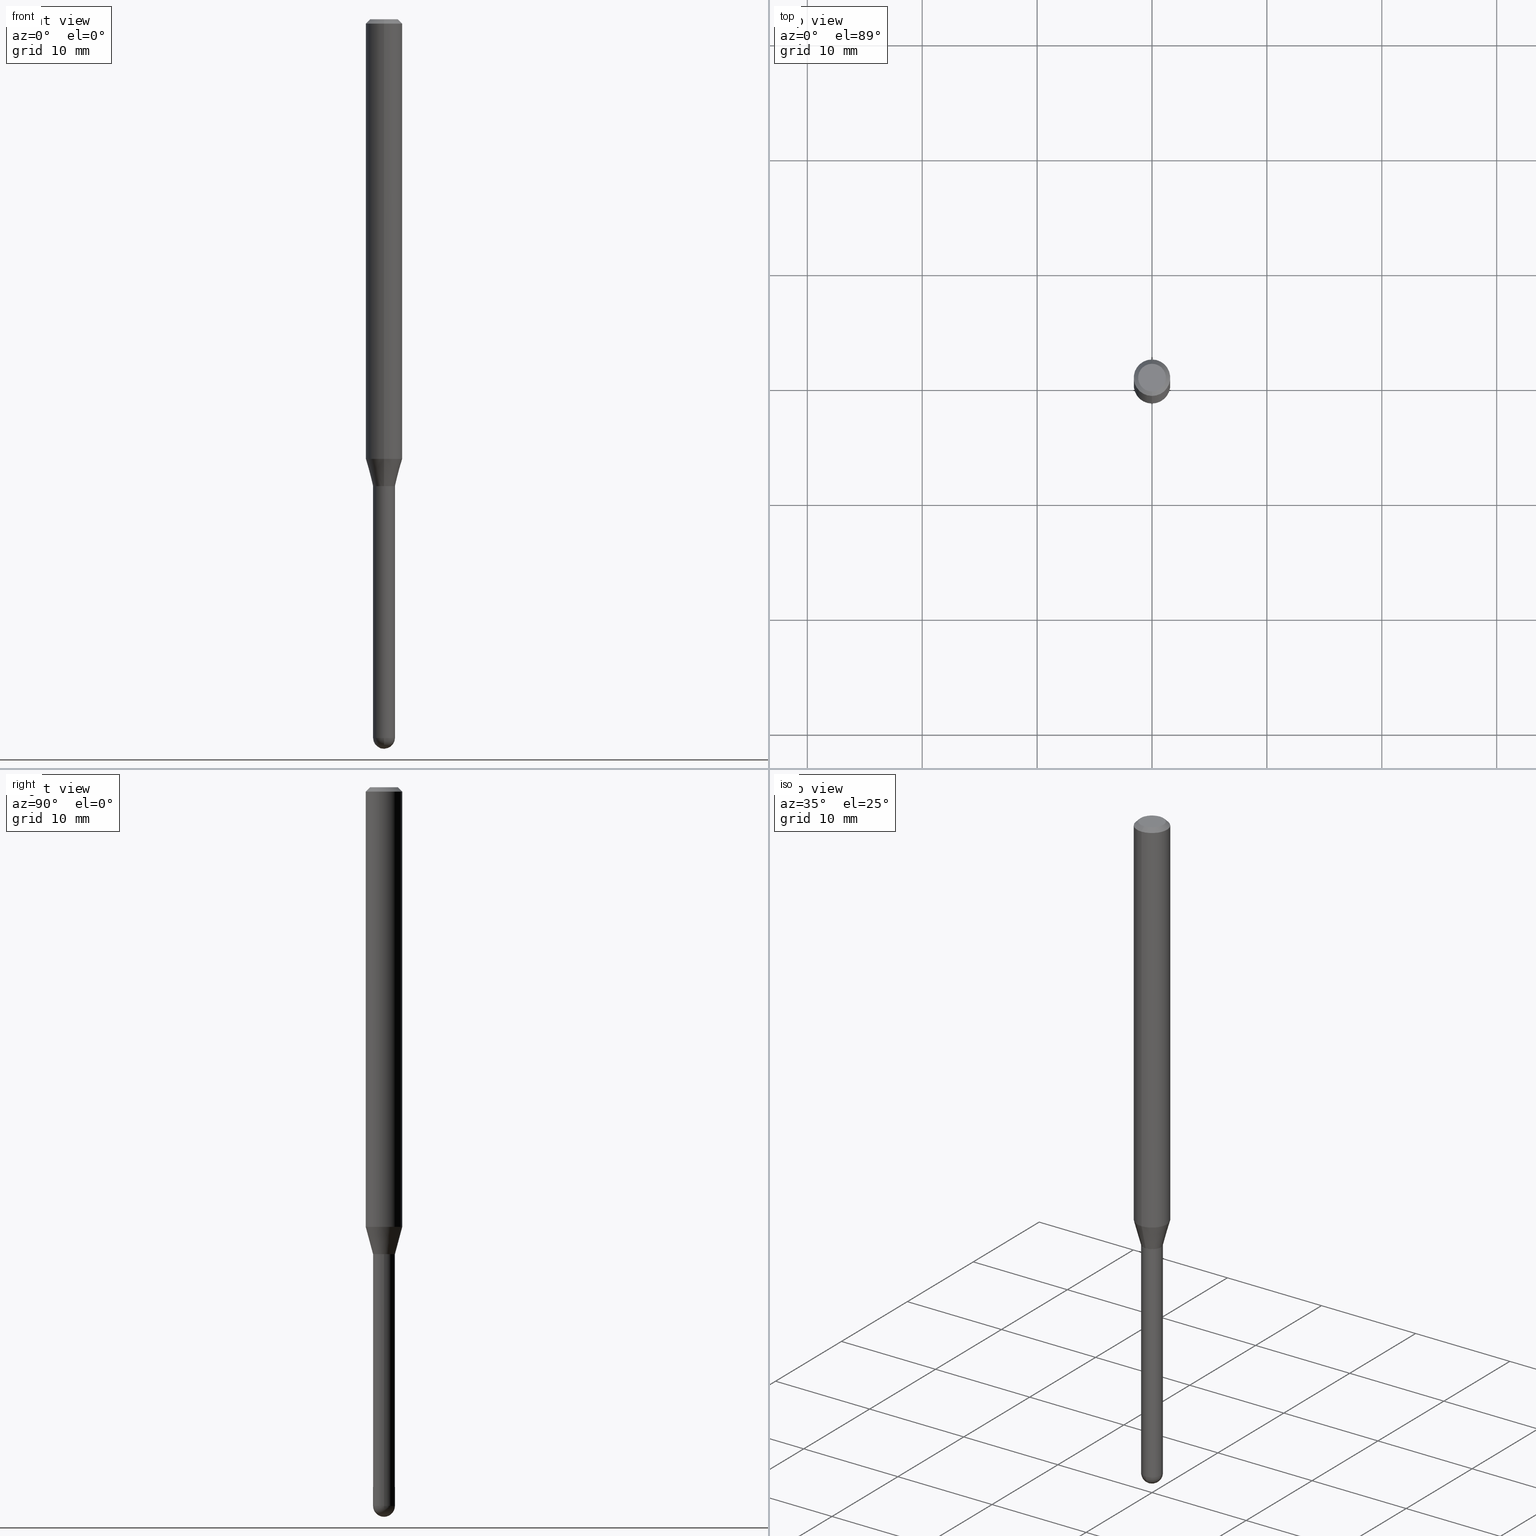
[diagram: canonical four-view strip — front | top / right | iso, engineering-drawing reading convention]
A machine part, canonical four-view strip (front | top / right | iso — engineering-drawing reading convention). The complete STEP part file that produces these views, byte-faithful:
ISO-10303-21;
HEADER;
FILE_DESCRIPTION (( 'STEP AP203' ),
    '1' );
FILE_NAME ('04526.STEP',
    '2024-03-08T20:29:47',
    ( '' ),
    ( '' ),
    'SwSTEP 2.0',
    'SolidWorks 2023',
    '' );
FILE_SCHEMA (( 'CONFIG_CONTROL_DESIGN' ));
ENDSEC;

DATA;
#1 = EDGE_CURVE ( 'NONE', #416, #306, #351, .T. ) ;
#2 = CARTESIAN_POINT ( 'NONE',  ( 6.021966935230899318E-29, -8.597772796901246653E-15, -2.462500000000000355 ) ) ;
#3 = ORIENTED_EDGE ( 'NONE', *, *, #361, .T. ) ;
#4 = CALENDAR_DATE ( 2024, 8, 3 ) ;
#5 = CARTESIAN_POINT ( 'NONE',  ( -4.287811248607203282E-16, -0.06250000000000005551, -0.01499999999999984852 ) ) ;
#6 = CIRCLE ( 'NONE', #505, 0.03749999999999999861 ) ;
#7 = DIRECTION ( 'NONE',  ( 1.000000000000000000, -6.982962677686242256E-15, 0.000000000000000000 ) ) ;
#8 = CC_DESIGN_PERSON_AND_ORGANIZATION_ASSIGNMENT ( #42, #385, ( #435 ) ) ;
#9 = VERTEX_POINT ( 'NONE', #107 ) ;
#10 = FACE_OUTER_BOUND ( 'NONE', #237, .T. ) ;
#11 = CYLINDRICAL_SURFACE ( 'NONE', #386, 0.03750000000000005412 ) ;
#12 = PERSON_AND_ORGANIZATION ( #284, #143 ) ;
#13 = FACE_OUTER_BOUND ( 'NONE', #49, .T. ) ;
#14 = EDGE_LOOP ( 'NONE', ( #371, #317 ) ) ;
#15 = DIRECTION ( 'NONE',  ( -6.982962677686265133E-15, -1.000000000000000000, 0.000000000000000000 ) ) ;
#16 = DIRECTION ( 'NONE',  ( -2.445449366316868324E-29, 3.491509177840954321E-15, 1.000000000000000000 ) ) ;
#17 = AXIS2_PLACEMENT_3D ( 'NONE', #387, #36, #395 ) ;
#18 = FACE_OUTER_BOUND ( 'NONE', #131, .T. ) ;
#19 = AXIS2_PLACEMENT_3D ( 'NONE', #167, #482, #15 ) ;
#20 = DIRECTION ( 'NONE',  ( -2.445468806185136597E-29, 3.491481338843145583E-15, 1.000000000000000000 ) ) ;
#21 = EDGE_CURVE ( 'NONE', #97, #266, #70, .T. ) ;
#22 = DIRECTION ( 'NONE',  ( -6.982962677686265922E-15, -1.000000000000000000, 0.000000000000000000 ) ) ;
#23 = APPLICATION_CONTEXT ( 'configuration controlled 3d designs of mechanical parts and assemblies' ) ;
#24 = DIRECTION ( 'NONE',  ( -2.445449366316868324E-29, 3.491509177840954321E-15, 1.000000000000000000 ) ) ;
#25 = ORIENTED_EDGE ( 'NONE', *, *, #298, .F. ) ;
#26 = EDGE_CURVE ( 'NONE', #428, #360, #108, .T. ) ;
#27 = DIRECTION ( 'NONE',  ( -1.000000000000000000, 6.982962677686265922E-15, -4.883557194083112901E-29 ) ) ;
#28 = DIRECTION ( 'NONE',  ( 1.000000000000000000, -6.982962677686266711E-15, 4.876176775795935793E-29 ) ) ;
#29 = CARTESIAN_POINT ( 'NONE',  ( 3.684555454046204946E-29, -5.260652443375649758E-15, -1.506698729810781012 ) ) ;
#30 = ORIENTED_EDGE ( 'NONE', *, *, #129, .F. ) ;
#31 = ORIENTED_EDGE ( 'NONE', *, *, #378, .T. ) ;
#32 = AXIS2_PLACEMENT_3D ( 'NONE', #259, #222, #294 ) ;
#33 = CIRCLE ( 'NONE', #181, 0.03749999999999992228 ) ;
#34 = APPROVAL_DATE_TIME ( #204, #425 ) ;
#35 = EDGE_CURVE ( 'NONE', #207, #9, #142, .T. ) ;
#36 = DIRECTION ( 'NONE',  ( 2.445449366316868324E-29, -3.491509177840953927E-15, -1.000000000000000000 ) ) ;
#37 = DIRECTION ( 'NONE',  ( -2.445468806185136597E-29, 3.491481338843145583E-15, 1.000000000000000000 ) ) ;
#38 = VERTEX_POINT ( 'NONE', #145 ) ;
#39 = PERSON_AND_ORGANIZATION_ROLE ( 'creator' ) ;
#40 = FACE_OUTER_BOUND ( 'NONE', #14, .T. ) ;
#41 = CARTESIAN_POINT ( 'NONE',  ( 6.018760061646477031E-29, -8.602365222398048274E-15, -2.462500000000000355 ) ) ;
#42 = PERSON_AND_ORGANIZATION ( #284, #143 ) ;
#43 = DIRECTION ( 'NONE',  ( -6.982962677686265922E-15, -1.000000000000000000, 3.491509177840953927E-15 ) ) ;
#44 = ADVANCED_FACE ( 'NONE', ( #292 ), #336, .F. ) ;
#45 = AXIS2_PLACEMENT_3D ( 'NONE', #226, #192, #341 ) ;
#46 = DATE_AND_TIME ( #483, #381 ) ;
#47 = CONICAL_SURFACE ( 'NONE', #326, 0.03749999999999992228, 0.2617993877991579010 ) ;
#48 = FACE_OUTER_BOUND ( 'NONE', #58, .T. ) ;
#49 = EDGE_LOOP ( 'NONE', ( #66, #234, #272, #255 ) ) ;
#50 = APPROVAL_ROLE ( '' ) ;
#51 = DIRECTION ( 'NONE',  ( -2.445468806185136597E-29, 3.491481338843145583E-15, 1.000000000000000000 ) ) ;
#52 =( NAMED_UNIT ( * ) SI_UNIT ( $, .STERADIAN. ) SOLID_ANGLE_UNIT ( ) );
#53 = DIRECTION ( 'NONE',  ( -2.445449366316868324E-29, 3.491509177840954321E-15, 1.000000000000000000 ) ) ;
#54 = ADVANCED_FACE ( 'NONE', ( #511 ), #443, .F. ) ;
#55 = AXIS2_PLACEMENT_3D ( 'NONE', #159, #313, #344 ) ;
#56 = LINE ( 'NONE', #214, #370 ) ;
#57 = ADVANCED_BREP_SHAPE_REPRESENTATION ( '04526', ( #512, #331, #301 ), #281 ) ;
#58 = EDGE_LOOP ( 'NONE', ( #158, #427, #290, #118 ) ) ;
#59 = CYLINDRICAL_SURFACE ( 'NONE', #134, 0.03749999999999999861 ) ;
#60 = DIRECTION ( 'NONE',  ( 1.000000000000000000, -6.982962677686242256E-15, 0.000000000000000000 ) ) ;
#61 = EDGE_CURVE ( 'NONE', #402, #416, #78, .T. ) ;
#62 = ORIENTED_EDGE ( 'NONE', *, *, #171, .F. ) ;
#63 = CYLINDRICAL_SURFACE ( 'NONE', #339, 0.03749999999999999861 ) ;
#64 = CIRCLE ( 'NONE', #249, 0.03749999999999999861 ) ;
#65 = ORIENTED_EDGE ( 'NONE', *, *, #335, .T. ) ;
#66 = ORIENTED_EDGE ( 'NONE', *, *, #335, .F. ) ;
#67 = DIMENSIONAL_EXPONENTS ( 1.000000000000000000, 0.000000000000000000, 0.000000000000000000, 0.000000000000000000, 0.000000000000000000, 0.000000000000000000, 0.000000000000000000 ) ;
#68 = EDGE_CURVE ( 'NONE', #207, #80, #401, .T. ) ;
#69 = DIRECTION ( 'NONE',  ( -4.937700262164674260E-15, -0.7071067811865632269, 0.7071067811865319186 ) ) ;
#70 = CIRCLE ( 'NONE', #191, 0.03749999999999999861 ) ;
#71 = AXIS2_PLACEMENT_3D ( 'NONE', #323, #364, #321 ) ;
#72 = CARTESIAN_POINT ( 'NONE',  ( -2.583696190743526501E-16, -0.03700000000000558398, -1.600000000000000311 ) ) ;
#73 = DIRECTION ( 'NONE',  ( -6.982962677686265922E-15, -1.000000000000000000, 4.370956789862821150E-15 ) ) ;
#74 = ADVANCED_FACE ( 'NONE', ( #13 ), #11, .F. ) ;
#75 = ORIENTED_EDGE ( 'NONE', *, *, #26, .T. ) ;
#76 = PERSON_AND_ORGANIZATION ( #284, #143 ) ;
#77 = ORIENTED_EDGE ( 'NONE', *, *, #277, .T. ) ;
#78 = CIRCLE ( 'NONE', #423, 0.03749999999999990841 ) ;
#79 = CIRCLE ( 'NONE', #112, 0.03750000000000019290 ) ;
#80 = VERTEX_POINT ( 'NONE', #441 ) ;
#81 = CARTESIAN_POINT ( 'NONE',  ( 3.912718986106990440E-29, -5.586414684545527703E-15, -1.600000000000000311 ) ) ;
#82 = DIRECTION ( 'NONE',  ( 1.000000000000000000, -6.982962677686242256E-15, 0.000000000000000000 ) ) ;
#83 = VERTEX_POINT ( 'NONE', #89 ) ;
#84 = APPROVAL_DATE_TIME ( #88, #152 ) ;
#85 = EDGE_CURVE ( 'NONE', #333, #80, #79, .T. ) ;
#86 = LINE ( 'NONE', #130, #242 ) ;
#87 = ORIENTED_EDGE ( 'NONE', *, *, #35, .F. ) ;
#88 = DATE_AND_TIME ( #200, #506 ) ;
#89 = CARTESIAN_POINT ( 'NONE',  ( -2.618611004131953121E-16, -0.03750000000000550809, -1.600000000000000089 ) ) ;
#90 = ORIENTED_EDGE ( 'NONE', *, *, #361, .F. ) ;
#91 = AXIS2_PLACEMENT_3D ( 'NONE', #41, #397, #240 ) ;
#92 = CARTESIAN_POINT ( 'NONE',  ( 6.112068578670630349E-29, -8.730999559856264176E-15, -2.500000000000000000 ) ) ;
#93 = DIRECTION ( 'NONE',  ( -4.851104656540964275E-15, -0.7071067811865500152, -0.7071067811865450192 ) ) ;
#94 = LINE ( 'NONE', #5, #269 ) ;
#95 = CC_DESIGN_DATE_AND_TIME_ASSIGNMENT ( #477, #239, ( #99 ) ) ;
#96 = EDGE_LOOP ( 'NONE', ( #263, #228, #420, #90, #117 ) ) ;
#97 = VERTEX_POINT ( 'NONE', #353 ) ;
#98 = AXIS2_PLACEMENT_3D ( 'NONE', #322, #409, #22 ) ;
#99 = SECURITY_CLASSIFICATION ( '', '', #208 ) ;
#100 = DIRECTION ( 'NONE',  ( -6.982962677686265922E-15, -1.000000000000000000, 4.370956789862821150E-15 ) ) ;
#101 = EDGE_LOOP ( 'NONE', ( #62, #188, #462, #389 ) ) ;
#102 = EDGE_CURVE ( 'NONE', #504, #360, #356, .T. ) ;
#103 = CARTESIAN_POINT ( 'NONE',  ( 0.03749999999999999861, -5.848231242562268092E-15, -1.600000000000000089 ) ) ;
#104 = ORIENTED_EDGE ( 'NONE', *, *, #1, .F. ) ;
#105 = FACE_OUTER_BOUND ( 'NONE', #101, .T. ) ;
#106 = DIRECTION ( 'NONE',  ( -6.982962677686265922E-15, -1.000000000000000000, 3.491509177840954321E-15 ) ) ;
#107 = CARTESIAN_POINT ( 'NONE',  ( -2.583696190743526501E-16, -0.03700000000000558398, -1.600000000000000311 ) ) ;
#108 = CIRCLE ( 'NONE', #248, 0.06250000000000000000 ) ;
#109 = CIRCLE ( 'NONE', #280, 0.06250000000000000000 ) ;
#110 = ORIENTED_EDGE ( 'NONE', *, *, #102, .F. ) ;
#111 = PRODUCT_RELATED_PRODUCT_CATEGORY ( 'detail', '', ( #435 ) ) ;
#112 = AXIS2_PLACEMENT_3D ( 'NONE', #172, #195, #439 ) ;
#113 = CIRCLE ( 'NONE', #352, 0.04749999999999999362 ) ;
#114 = CC_DESIGN_PERSON_AND_ORGANIZATION_ASSIGNMENT ( #170, #349, ( #467 ) ) ;
#115 = DIRECTION ( 'NONE',  ( -2.445449366316868324E-29, 3.491509177840954321E-15, 1.000000000000000000 ) ) ;
#116 = ORIENTED_EDGE ( 'NONE', *, *, #21, .T. ) ;
#117 = ORIENTED_EDGE ( 'NONE', *, *, #298, .T. ) ;
#118 = ORIENTED_EDGE ( 'NONE', *, *, #413, .F. ) ;
#119 = DIRECTION ( 'NONE',  ( -1.000000000000000000, 6.982962677686265922E-15, -4.883557194083112901E-29 ) ) ;
#120 = COORDINATED_UNIVERSAL_TIME_OFFSET ( 5, 0, .BEHIND. ) ;
#121 = CARTESIAN_POINT ( 'NONE',  ( -4.364351673553550860E-16, -0.06250000000000530131, -1.506698729810780790 ) ) ;
#122 = CARTESIAN_POINT ( 'NONE',  ( 2.629008122312761537E-16, 0.03699999999999440542, -1.600000000000000311 ) ) ;
#123 = VECTOR ( 'NONE', #233, 39.37007874015748143 ) ;
#124 = CIRCLE ( 'NONE', #320, 0.03749999999999999861 ) ;
#125 = ORIENTED_EDGE ( 'NONE', *, *, #68, .F. ) ;
#126 = FACE_OUTER_BOUND ( 'NONE', #486, .T. ) ;
#127 = DIRECTION ( 'NONE',  ( -6.982962677686265133E-15, -1.000000000000000000, 0.000000000000000000 ) ) ;
#128 = PERSON_AND_ORGANIZATION_ROLE ( 'classification_officer' ) ;
#129 = EDGE_CURVE ( 'NONE', #83, #333, #86, .T. ) ;
#130 = CARTESIAN_POINT ( 'NONE',  ( -2.618611004132353468E-16, -0.03750000000000005412, 1.309315941690359843E-16 ) ) ;
#131 = EDGE_LOOP ( 'NONE', ( #509, #501, #466, #3, #471 ) ) ;
#132 = SHAPE_DEFINITION_REPRESENTATION ( #406, #57 ) ;
#133 = CARTESIAN_POINT ( 'NONE',  ( -0.03749999999999999861, -6.825617943615102854E-15, -2.462500000000000355 ) ) ;
#134 = AXIS2_PLACEMENT_3D ( 'NONE', #250, #20, #28 ) ;
#135 = LINE ( 'NONE', #138, #261 ) ;
#136 = CARTESIAN_POINT ( 'NONE',  ( -0.03749999999999999861, 2.664535259100375598E-16, -1.844600658845589808E-30 ) ) ;
#137 = CC_DESIGN_DATE_AND_TIME_ASSIGNMENT ( #311, #394, ( #241 ) ) ;
#138 = CARTESIAN_POINT ( 'NONE',  ( 4.440892098500625669E-16, 0.06250000000000000000, -2.182193236150596451E-16 ) ) ;
#139 = CARTESIAN_POINT ( 'NONE',  ( 0.000000000000000000, 0.000000000000000000, 0.000000000000000000 ) ) ;
#140 = FACE_OUTER_BOUND ( 'NONE', #262, .T. ) ;
#141 = ADVANCED_FACE ( 'NONE', ( #126 ), #488, .T. ) ;
#142 = CIRCLE ( 'NONE', #497, 0.03699999999999999817 ) ;
#143 = ORGANIZATION ( 'UNSPECIFIED', 'UNSPECIFIED', '' ) ;
#144 = DIRECTION ( 'NONE',  ( 1.000000000000000000, -6.982962677686266711E-15, 4.876176775795935793E-29 ) ) ;
#145 = CARTESIAN_POINT ( 'NONE',  ( 4.440892098500996926E-16, 0.06249999999999995837, -0.01500000000000028394 ) ) ;
#146 = DIRECTION ( 'NONE',  ( 1.000000000000000000, -6.982962677686268288E-15, 0.000000000000000000 ) ) ;
#147 = EDGE_LOOP ( 'NONE', ( #252, #65, #157, #30 ) ) ;
#148 = DIRECTION ( 'NONE',  ( -2.445449366316868324E-29, 3.491509177840954321E-15, 1.000000000000000000 ) ) ;
#149 = DIRECTION ( 'NONE',  ( -2.445449366316868324E-29, 3.491509177840954321E-15, 1.000000000000000000 ) ) ;
#150 = ADVANCED_FACE ( 'NONE', ( #236 ), #268, .T. ) ;
#151 = LINE ( 'NONE', #72, #510 ) ;
#152 = APPROVAL ( #194, 'UNSPECIFIED' ) ;
#153 = CARTESIAN_POINT ( 'NONE',  ( -4.364351673553916201E-16, -0.06250000000000000000, 2.182193236150596451E-16 ) ) ;
#154 = ORIENTED_EDGE ( 'NONE', *, *, #337, .T. ) ;
#155 = VECTOR ( 'NONE', #274, 39.37007874015748143 ) ;
#156 = EDGE_LOOP ( 'NONE', ( #75, #227, #407, #196 ) ) ;
#157 = ORIENTED_EDGE ( 'NONE', *, *, #293, .T. ) ;
#158 = ORIENTED_EDGE ( 'NONE', *, *, #368, .F. ) ;
#159 = CARTESIAN_POINT ( 'NONE',  ( 0.000000000000000000, 0.000000000000000000, 0.000000000000000000 ) ) ;
#160 = PERSON_AND_ORGANIZATION ( #284, #143 ) ;
#161 = DIRECTION ( 'NONE',  ( 6.982962677686265922E-15, 1.000000000000000000, -3.483106191921935554E-15 ) ) ;
#162 = ADVANCED_FACE ( 'NONE', ( #48 ), #431, .T. ) ;
#163 = AXIS2_PLACEMENT_3D ( 'NONE', #285, #24, #500 ) ;
#164 = CALENDAR_DATE ( 2024, 8, 3 ) ;
#165 = DIRECTION ( 'NONE',  ( 2.445449366316868324E-29, -3.491509177840954321E-15, -1.000000000000000000 ) ) ;
#166 = VERTEX_POINT ( 'NONE', #319 ) ;
#167 = CARTESIAN_POINT ( 'NONE',  ( 3.912718986106990440E-29, -5.586414684545527703E-15, -1.600000000000000311 ) ) ;
#168 = APPROVAL_ROLE ( '' ) ;
#169 = CARTESIAN_POINT ( 'NONE',  ( 3.668174049475319214E-31, -5.237263766761454039E-17, -0.01500000000000006710 ) ) ;
#170 = PERSON_AND_ORGANIZATION ( #284, #143 ) ;
#171 = EDGE_CURVE ( 'NONE', #402, #264, #465, .T. ) ;
#172 = CARTESIAN_POINT ( 'NONE',  ( 3.911496261423831796E-29, -5.584668929956606617E-15, -1.599500000000000144 ) ) ;
#173 = ORIENTED_EDGE ( 'NONE', *, *, #445, .T. ) ;
#174 = CIRCLE ( 'NONE', #163, 0.03749999999999992228 ) ;
#175 = CARTESIAN_POINT ( 'NONE',  ( 3.684555454046204946E-29, -5.260652443375649758E-15, -1.506698729810781012 ) ) ;
#176 = CYLINDRICAL_SURFACE ( 'NONE', #461, 0.03750000000000005412 ) ;
#177 = EDGE_CURVE ( 'NONE', #180, #97, #485, .T. ) ;
#178 = ORIENTED_EDGE ( 'NONE', *, *, #35, .T. ) ;
#179 = DIRECTION ( 'NONE',  ( -2.445449366316868324E-29, 3.491509177840954321E-15, 1.000000000000000000 ) ) ;
#180 = VERTEX_POINT ( 'NONE', #133 ) ;
#181 = AXIS2_PLACEMENT_3D ( 'NONE', #282, #408, #405 ) ;
#182 = CARTESIAN_POINT ( 'NONE',  ( 4.440892098500991010E-16, 0.06249999999999470562, -1.506698729810781234 ) ) ;
#183 = ORIENTED_EDGE ( 'NONE', *, *, #464, .F. ) ;
#184 = DIRECTION ( 'NONE',  ( 6.982962677686265922E-15, 1.000000000000000000, 0.000000000000000000 ) ) ;
#185 = CARTESIAN_POINT ( 'NONE',  ( 1.601742721112102323E-45, -2.286900513391452894E-31, -6.549891170000029540E-17 ) ) ;
#186 = CARTESIAN_POINT ( 'NONE',  ( 3.912718986106990440E-29, -5.586414684545527703E-15, -1.600000000000000311 ) ) ;
#187 = CC_DESIGN_PERSON_AND_ORGANIZATION_ASSIGNMENT ( #235, #128, ( #99 ) ) ;
#188 = ORIENTED_EDGE ( 'NONE', *, *, #61, .T. ) ;
#189 = EDGE_CURVE ( 'NONE', #166, #304, #94, .T. ) ;
#190 = DIRECTION ( 'NONE',  ( -2.445449366316868324E-29, 3.491509177840954321E-15, 1.000000000000000000 ) ) ;
#191 = AXIS2_PLACEMENT_3D ( 'NONE', #327, #499, #375 ) ;
#192 = DIRECTION ( 'NONE',  ( 2.438088387897960049E-29, -3.491481338843145188E-15, -1.000000000000000000 ) ) ;
#193 = CIRCLE ( 'NONE', #98, 0.03750000000000019290 ) ;
#194 = APPROVAL_STATUS ( 'not_yet_approved' ) ;
#195 = DIRECTION ( 'NONE',  ( -2.445449366316868324E-29, 3.491509177840954321E-15, 1.000000000000000000 ) ) ;
#196 = ORIENTED_EDGE ( 'NONE', *, *, #396, .F. ) ;
#197 = APPROVAL_ROLE ( '' ) ;
#198 = EDGE_CURVE ( 'NONE', #264, #180, #203, .T. ) ;
#199 = CARTESIAN_POINT ( 'NONE',  ( 3.912718986106990440E-29, -5.586414684545527703E-15, -1.600000000000000311 ) ) ;
#200 = CALENDAR_DATE ( 2024, 8, 3 ) ;
#201 = LINE ( 'NONE', #350, #155 ) ;
#202 = CARTESIAN_POINT ( 'NONE',  ( 6.021966935230899318E-29, -8.597772796901246653E-15, -2.462500000000000355 ) ) ;
#203 = CIRCLE ( 'NONE', #229, 0.03749999999999999861 ) ;
#204 = DATE_AND_TIME ( #164, #411 ) ;
#205 = DIRECTION ( 'NONE',  ( -2.445449366316868324E-29, 3.491509177840954321E-15, 1.000000000000000000 ) ) ;
#206 = ADVANCED_FACE ( 'NONE', ( #305 ), #309, .T. ) ;
#207 = VERTEX_POINT ( 'NONE', #244 ) ;
#208 = SECURITY_CLASSIFICATION_LEVEL ( 'unclassified' ) ;
#209 = DIRECTION ( 'NONE',  ( -7.105427357601000281E-15, -1.000000000000000000, 0.000000000000000000 ) ) ;
#210 = CARTESIAN_POINT ( 'NONE',  ( 0.000000000000000000, 0.000000000000000000, 0.000000000000000000 ) ) ;
#211 = CONICAL_SURFACE ( 'NONE', #424, 0.03749999999999992228, 0.2617993877991579010 ) ;
#212 = DIRECTION ( 'NONE',  ( -1.807323732225381810E-15, -0.2588190451025255689, 0.9659258262890669799 ) ) ;
#213 = ORIENTED_EDGE ( 'NONE', *, *, #277, .F. ) ;
#214 = CARTESIAN_POINT ( 'NONE',  ( -2.618611004131953121E-16, -0.03750000000000550809, -1.600000000000000089 ) ) ;
#215 = EDGE_CURVE ( 'NONE', #180, #416, #6, .T. ) ;
#216 = DIRECTION ( 'NONE',  ( -6.982962677686266711E-15, -1.000000000000000000, 3.491509177840954716E-15 ) ) ;
#217 = EDGE_LOOP ( 'NONE', ( #449, #77, #390, #183 ) ) ;
#218 = SPHERICAL_SURFACE ( 'NONE', #451, 0.03749999999999990841 ) ;
#219 = CC_DESIGN_APPROVAL ( #152, ( #467 ) ) ;
#220 = DIRECTION ( 'NONE',  ( -2.445468806185136877E-29, 3.491481338843145188E-15, 1.000000000000000000 ) ) ;
#221 = LENGTH_MEASURE_WITH_UNIT ( LENGTH_MEASURE( 0.02539999999999999897 ), #358 );
#222 = DIRECTION ( 'NONE',  ( -2.445468806185136597E-29, 3.491481338843145583E-15, 1.000000000000000000 ) ) ;
#223 = ADVANCED_FACE ( 'NONE', ( #479 ), #176, .F. ) ;
#224 = VERTEX_POINT ( 'NONE', #496 ) ;
#225 = CIRCLE ( 'NONE', #289, 0.06250000000000000000 ) ;
#226 = CARTESIAN_POINT ( 'NONE',  ( 2.618611004132740996E-16, 0.03749999999999441280, -1.600000000000000089 ) ) ;
#227 = ORIENTED_EDGE ( 'NONE', *, *, #475, .T. ) ;
#228 = ORIENTED_EDGE ( 'NONE', *, *, #177, .T. ) ;
#229 = AXIS2_PLACEMENT_3D ( 'NONE', #202, #37, #7 ) ;
#230 = APPROVAL_PERSON_ORGANIZATION ( #307, #152, #50 ) ;
#231 = COORDINATED_UNIVERSAL_TIME_OFFSET ( 5, 0, .BEHIND. ) ;
#232 = EDGE_CURVE ( 'NONE', #266, #97, #124, .T. ) ;
#233 = DIRECTION ( 'NONE',  ( 1.839019923739652775E-15, 0.2588190451025323413, 0.9659258262890650926 ) ) ;
#234 = ORIENTED_EDGE ( 'NONE', *, *, #445, .F. ) ;
#235 = PERSON_AND_ORGANIZATION ( #284, #143 ) ;
#236 = FACE_OUTER_BOUND ( 'NONE', #469, .T. ) ;
#237 = EDGE_LOOP ( 'NONE', ( #345, #472, #436, #383 ) ) ;
#238 = DIRECTION ( 'NONE',  ( -2.445449366316868324E-29, 3.491509177840954321E-15, 1.000000000000000000 ) ) ;
#239 = DATE_TIME_ROLE ( 'classification_date' ) ;
#240 = DIRECTION ( 'NONE',  ( 6.982962677686265133E-15, 1.000000000000000000, 0.000000000000000000 ) ) ;
#241 = PRODUCT_DEFINITION ( 'UNKNOWN', '', #467, #426 ) ;
#242 = VECTOR ( 'NONE', #270, 39.37007874015748143 ) ;
#243 = CIRCLE ( 'NONE', #363, 0.03699999999999999817 ) ;
#244 = CARTESIAN_POINT ( 'NONE',  ( 2.646771690706770467E-16, 0.03699999999999440542, -1.600000000000000311 ) ) ;
#245 = DIRECTION ( 'NONE',  ( -2.445449366316868324E-29, 3.491509177840953927E-15, 1.000000000000000000 ) ) ;
#246 = DIRECTION ( 'NONE',  ( -2.445449366316868604E-29, 3.491509177840953927E-15, 1.000000000000000000 ) ) ;
#247 = DIRECTION ( 'NONE',  ( -6.982962677686265133E-15, -1.000000000000000000, 0.000000000000000000 ) ) ;
#248 = AXIS2_PLACEMENT_3D ( 'NONE', #29, #115, #73 ) ;
#249 = AXIS2_PLACEMENT_3D ( 'NONE', #415, #324, #60 ) ;
#250 = CARTESIAN_POINT ( 'NONE',  ( 0.000000000000000000, 0.000000000000000000, 0.000000000000000000 ) ) ;
#251 = DIRECTION ( 'NONE',  ( -6.982962677686265922E-15, -1.000000000000000000, 3.491509177840954716E-15 ) ) ;
#252 = ORIENTED_EDGE ( 'NONE', *, *, #337, .F. ) ;
#253 = FACE_OUTER_BOUND ( 'NONE', #156, .T. ) ;
#254 = EDGE_CURVE ( 'NONE', #224, #166, #478, .T. ) ;
#255 = ORIENTED_EDGE ( 'NONE', *, *, #85, .T. ) ;
#256 = AXIS2_PLACEMENT_3D ( 'NONE', #199, #205, #347 ) ;
#257 = VECTOR ( 'NONE', #220, 39.37007874015748143 ) ;
#258 = CC_DESIGN_APPROVAL ( #422, ( #99 ) ) ;
#259 = CARTESIAN_POINT ( 'NONE',  ( 6.021966935230899318E-29, -8.597772796901246653E-15, -2.462500000000000355 ) ) ;
#260 = ADVANCED_FACE ( 'NONE', ( #140 ), #211, .T. ) ;
#261 = VECTOR ( 'NONE', #246, 39.37007874015748143 ) ;
#262 = EDGE_LOOP ( 'NONE', ( #110, #154, #412, #213 ) ) ;
#263 = ORIENTED_EDGE ( 'NONE', *, *, #198, .T. ) ;
#264 = VERTEX_POINT ( 'NONE', #365 ) ;
#265 = CC_DESIGN_PERSON_AND_ORGANIZATION_ASSIGNMENT ( #12, #315, ( #467 ) ) ;
#266 = VERTEX_POINT ( 'NONE', #103 ) ;
#267 = CARTESIAN_POINT ( 'NONE',  ( 6.018760061646477031E-29, -8.602365222398048274E-15, -2.462500000000000355 ) ) ;
#268 = CONICAL_SURFACE ( 'NONE', #442, 0.06250000000000000000, 0.7853981633974483900 ) ;
#269 = VECTOR ( 'NONE', #93, 39.37007874015748143 ) ;
#270 = DIRECTION ( 'NONE',  ( -2.445449366316868604E-29, 3.491509177840953927E-15, 1.000000000000000000 ) ) ;
#271 = APPROVAL_PERSON_ORGANIZATION ( #343, #422, #197 ) ;
#272 = ORIENTED_EDGE ( 'NONE', *, *, #129, .T. ) ;
#273 = APPROVAL_STATUS ( 'not_yet_approved' ) ;
#274 = DIRECTION ( 'NONE',  ( 4.937700262164548042E-15, 0.7071067811865451302, -0.7071067811865499042 ) ) ;
#275 = DIRECTION ( 'NONE',  ( -6.982962677686265922E-15, -1.000000000000000000, 3.491509177840954716E-15 ) ) ;
#276 = APPLICATION_PROTOCOL_DEFINITION ( 'international standard', 'config_control_design', 1994, #23 ) ;
#277 = EDGE_CURVE ( 'NONE', #360, #428, #109, .T. ) ;
#278 = DIRECTION ( 'NONE',  ( -1.000000000000000000, 7.105427357601001070E-15, -4.926315508542082329E-29 ) ) ;
#279 = ORIENTED_EDGE ( 'NONE', *, *, #303, .F. ) ;
#280 = AXIS2_PLACEMENT_3D ( 'NONE', #175, #450, #100 ) ;
#281 =( GEOMETRIC_REPRESENTATION_CONTEXT ( 3 ) GLOBAL_UNCERTAINTY_ASSIGNED_CONTEXT ( ( #299 ) ) GLOBAL_UNIT_ASSIGNED_CONTEXT ( ( #434, #384, #52 ) ) REPRESENTATION_CONTEXT ( 'NONE', 'WORKASPACE' ) );
#282 = CARTESIAN_POINT ( 'NONE',  ( 3.912718986106989879E-29, -5.586414684545526914E-15, -1.600000000000000089 ) ) ;
#283 = DIRECTION ( 'NONE',  ( -2.445468806185136877E-29, 3.491481338843145188E-15, 1.000000000000000000 ) ) ;
#284 = PERSON ( 'UNSPECIFIED', 'UNSPECIFIED', 'UNSPECIFIED', ('UNSPECIFIED'), ('UNSPECIFIED'), ('UNSPECIFIED') ) ;
#285 = CARTESIAN_POINT ( 'NONE',  ( 3.912718986106989879E-29, -5.586414684545526914E-15, -1.600000000000000089 ) ) ;
#286 = ADVANCED_FACE ( 'NONE', ( #414 ), #59, .T. ) ;
#287 = FACE_OUTER_BOUND ( 'NONE', #296, .T. ) ;
#288 = CARTESIAN_POINT ( 'NONE',  ( 1.601742721112102323E-45, -2.286900513391452894E-31, -6.549891170000029540E-17 ) ) ;
#290 = ORIENTED_EDGE ( 'NONE', *, *, #459, .T. ) ;
#289 = AXIS2_PLACEMENT_3D ( 'NONE', #366, #16, #487 ) ;
#291 = CARTESIAN_POINT ( 'NONE',  ( -2.618611004131981224E-16, -0.03750000000000591055, -1.599500000000000144 ) ) ;
#292 = FACE_OUTER_BOUND ( 'NONE', #495, .T. ) ;
#293 = EDGE_CURVE ( 'NONE', #80, #333, #193, .T. ) ;
#294 = DIRECTION ( 'NONE',  ( 1.000000000000000000, -6.982962677686242256E-15, 0.000000000000000000 ) ) ;
#295 = DIRECTION ( 'NONE',  ( -2.445449366316868324E-29, 3.491509177840954321E-15, 1.000000000000000000 ) ) ;
#296 = EDGE_LOOP ( 'NONE', ( #173, #357, #398, #279 ) ) ;
#297 = AXIS2_PLACEMENT_3D ( 'NONE', #267, #119, #314 ) ;
#298 = EDGE_CURVE ( 'NONE', #306, #264, #64, .T. ) ;
#299 = UNCERTAINTY_MEASURE_WITH_UNIT (LENGTH_MEASURE( 1.000000000000000082E-05 ), #434, 'distance_accuracy_value', 'NONE');
#300 = CONICAL_SURFACE ( 'NONE', #19, 0.03699999999999999817, 0.7853981633974739252 ) ;
#301 = AXIS2_PLACEMENT_3D ( 'NONE', #376, #334, #392 ) ;
#302 = ORIENTED_EDGE ( 'NONE', *, *, #464, .T. ) ;
#303 = EDGE_CURVE ( 'NONE', #83, #428, #56, .T. ) ;
#304 = VERTEX_POINT ( 'NONE', #367 ) ;
#305 = FACE_OUTER_BOUND ( 'NONE', #217, .T. ) ;
#306 = VERTEX_POINT ( 'NONE', #503 ) ;
#307 = PERSON_AND_ORGANIZATION ( #284, #143 ) ;
#308 = PLANE ( 'NONE',  #17 ) ;
#309 = CYLINDRICAL_SURFACE ( 'NONE', #55, 0.06250000000000000000 ) ;
#310 = ADVANCED_FACE ( 'NONE', ( #253 ), #417, .T. ) ;
#311 = DATE_AND_TIME ( #4, #463 ) ;
#312 = CARTESIAN_POINT ( 'NONE',  ( -2.664535259099770148E-16, -0.03750000000000855427, -2.462500000000000355 ) ) ;
#313 = DIRECTION ( 'NONE',  ( -2.445449366316868324E-29, 3.491509177840954321E-15, 1.000000000000000000 ) ) ;
#314 = DIRECTION ( 'NONE',  ( 6.982962677686265922E-15, 1.000000000000000000, 0.000000000000000000 ) ) ;
#315 = PERSON_AND_ORGANIZATION_ROLE ( 'design_supplier' ) ;
#316 = DIRECTION ( 'NONE',  ( 6.982962677686265922E-15, 1.000000000000000000, -3.483106191921935554E-15 ) ) ;
#317 = ORIENTED_EDGE ( 'NONE', *, *, #368, .T. ) ;
#318 = COORDINATED_UNIVERSAL_TIME_OFFSET ( 5, 0, .BEHIND. ) ;
#319 = CARTESIAN_POINT ( 'NONE',  ( -3.773273898774340269E-16, -0.04749999999999999362, 1.003477742474450250E-16 ) ) ;
#320 = AXIS2_PLACEMENT_3D ( 'NONE', #448, #493, #146 ) ;
#321 = DIRECTION ( 'NONE',  ( -6.982962677686265922E-15, -1.000000000000000000, 3.483106191921935554E-15 ) ) ;
#322 = CARTESIAN_POINT ( 'NONE',  ( 3.911496261423831796E-29, -5.584668929956606617E-15, -1.599500000000000144 ) ) ;
#323 = CARTESIAN_POINT ( 'NONE',  ( 3.668174049475319214E-31, -5.237263766761454039E-17, -0.01500000000000006710 ) ) ;
#324 = DIRECTION ( 'NONE',  ( -2.445468806185136597E-29, 3.491481338843145583E-15, 1.000000000000000000 ) ) ;
#325 = DIRECTION ( 'NONE',  ( -2.445468806185136597E-29, 3.491481338843145583E-15, 1.000000000000000000 ) ) ;
#327 = CARTESIAN_POINT ( 'NONE',  ( 3.912750089896218667E-29, -5.586370142149033090E-15, -1.600000000000000089 ) ) ;
#326 = AXIS2_PLACEMENT_3D ( 'NONE', #354, #190, #348 ) ;
#328 = ADVANCED_FACE ( 'NONE', ( #18 ), #63, .T. ) ;
#329 = LINE ( 'NONE', #455, #257 ) ;
#330 = ORIENTED_EDGE ( 'NONE', *, *, #502, .F. ) ;
#331 = MANIFOLD_SOLID_BREP ( 'Body-Move/Copy2[2]', #338 ) ;
#332 = DIRECTION ( 'NONE',  ( -6.982962677686266711E-15, -1.000000000000000000, 3.491509177840954716E-15 ) ) ;
#333 = VERTEX_POINT ( 'NONE', #291 ) ;
#334 = DIRECTION ( 'NONE',  ( 0.000000000000000000, 0.000000000000000000, 1.000000000000000000 ) ) ;
#335 = EDGE_CURVE ( 'NONE', #504, #80, #458, .T. ) ;
#336 = PLANE ( 'NONE',  #45 ) ;
#337 = EDGE_CURVE ( 'NONE', #504, #83, #174, .T. ) ;
#338 = CLOSED_SHELL ( 'NONE', ( #223, #507, #162, #310, #494, #260, #206, #150, #404, #54, #141, #74 ) ) ;
#339 = AXIS2_PLACEMENT_3D ( 'NONE', #139, #325, #144 ) ;
#340 = APPROVAL_PERSON_ORGANIZATION ( #160, #425, #168 ) ;
#341 = DIRECTION ( 'NONE',  ( -1.000000000000000000, 6.982962677686265922E-15, -4.876176775795935793E-29 ) ) ;
#342 = ORIENTED_EDGE ( 'NONE', *, *, #189, .F. ) ;
#343 = PERSON_AND_ORGANIZATION ( #284, #143 ) ;
#344 = DIRECTION ( 'NONE',  ( -6.982962677686265922E-15, -1.000000000000000000, 3.491509177840954321E-15 ) ) ;
#345 = ORIENTED_EDGE ( 'NONE', *, *, #502, .T. ) ;
#346 = CALENDAR_DATE ( 2024, 8, 3 ) ;
#347 = DIRECTION ( 'NONE',  ( -6.982962677686265133E-15, -1.000000000000000000, 0.000000000000000000 ) ) ;
#348 = DIRECTION ( 'NONE',  ( -6.982962677686265133E-15, -1.000000000000000000, 0.000000000000000000 ) ) ;
#349 = PERSON_AND_ORGANIZATION_ROLE ( 'creator' ) ;
#350 = CARTESIAN_POINT ( 'NONE',  ( 4.364351673553919652E-16, 0.06249999999999995143, -0.01500000000000028394 ) ) ;
#351 = CIRCLE ( 'NONE', #32, 0.03749999999999999861 ) ;
#352 = AXIS2_PLACEMENT_3D ( 'NONE', #185, #148, #332 ) ;
#353 = CARTESIAN_POINT ( 'NONE',  ( -0.03749999999999999861, -6.825617943615102854E-15, -1.600000000000000089 ) ) ;
#354 = CARTESIAN_POINT ( 'NONE',  ( 3.912718986106989879E-29, -5.586414684545526914E-15, -1.600000000000000089 ) ) ;
#355 = APPROVAL_DATE_TIME ( #46, #422 ) ;
#356 = LINE ( 'NONE', #359, #123 ) ;
#357 = ORIENTED_EDGE ( 'NONE', *, *, #102, .T. ) ;
#358 =( LENGTH_UNIT ( ) NAMED_UNIT ( * ) SI_UNIT ( $, .METRE. ) );
#359 = CARTESIAN_POINT ( 'NONE',  ( 2.664535259100761154E-16, 0.03749999999999432954, -1.600000000000000089 ) ) ;
#360 = VERTEX_POINT ( 'NONE', #182 ) ;
#361 = EDGE_CURVE ( 'NONE', #306, #266, #329, .T. ) ;
#362 = DIRECTION ( 'NONE',  ( -2.445449366316868324E-29, 3.491509177840954321E-15, 1.000000000000000000 ) ) ;
#363 = AXIS2_PLACEMENT_3D ( 'NONE', #81, #238, #127 ) ;
#364 = DIRECTION ( 'NONE',  ( -2.445449366316868324E-29, 3.491509177840954321E-15, 1.000000000000000000 ) ) ;
#365 = CARTESIAN_POINT ( 'NONE',  ( 2.618611004132948565E-16, 0.03749999999999135275, -2.462500000000000355 ) ) ;
#366 = CARTESIAN_POINT ( 'NONE',  ( 3.668174049475319214E-31, -5.237263766761454039E-17, -0.01500000000000006710 ) ) ;
#367 = CARTESIAN_POINT ( 'NONE',  ( -4.364351673553912750E-16, -0.06250000000000005551, -0.01499999999999984852 ) ) ;
#368 = EDGE_CURVE ( 'NONE', #166, #224, #113, .T. ) ;
#369 = DIRECTION ( 'NONE',  ( -2.445449366316868604E-29, 3.491509177840953927E-15, 1.000000000000000000 ) ) ;
#371 = ORIENTED_EDGE ( 'NONE', *, *, #254, .T. ) ;
#370 = VECTOR ( 'NONE', #212, 39.37007874015748854 ) ;
#372 = LOCAL_TIME ( 15, 29, 47.00000000000000000, #318 ) ;
#373 = CARTESIAN_POINT ( 'NONE',  ( 6.018760061646477031E-29, -8.602365222398048274E-15, -2.462500000000000355 ) ) ;
#374 = CARTESIAN_POINT ( 'NONE',  ( 0.000000000000000000, 0.000000000000000000, 0.000000000000000000 ) ) ;
#375 = DIRECTION ( 'NONE',  ( 1.000000000000000000, -6.982962677686268288E-15, 0.000000000000000000 ) ) ;
#376 = CARTESIAN_POINT ( 'NONE',  ( 0.000000000000000000, 0.000000000000000000, 0.000000000000000000 ) ) ;
#377 = ORIENTED_EDGE ( 'NONE', *, *, #61, .F. ) ;
#378 = EDGE_CURVE ( 'NONE', #9, #333, #151, .T. ) ;
#379 = VECTOR ( 'NONE', #447, 39.37007874015748143 ) ;
#380 = AXIS2_PLACEMENT_3D ( 'NONE', #210, #179, #106 ) ;
#381 = LOCAL_TIME ( 15, 29, 47.00000000000000000, #399 ) ;
#382 = CC_DESIGN_PERSON_AND_ORGANIZATION_ASSIGNMENT ( #76, #39, ( #241 ) ) ;
#383 = ORIENTED_EDGE ( 'NONE', *, *, #378, .F. ) ;
#384 =( NAMED_UNIT ( * ) PLANE_ANGLE_UNIT ( ) SI_UNIT ( $, .RADIAN. ) );
#385 = PERSON_AND_ORGANIZATION_ROLE ( 'design_owner' ) ;
#386 = AXIS2_PLACEMENT_3D ( 'NONE', #474, #481, #275 ) ;
#387 = CARTESIAN_POINT ( 'NONE',  ( 3.316907271900976096E-16, 0.04749999999999999362, -1.985961417974454743E-16 ) ) ;
#388 = CIRCLE ( 'NONE', #71, 0.06250000000000000000 ) ;
#389 = ORIENTED_EDGE ( 'NONE', *, *, #198, .F. ) ;
#390 = ORIENTED_EDGE ( 'NONE', *, *, #396, .T. ) ;
#391 = CARTESIAN_POINT ( 'NONE',  ( 3.552713678800878794E-16, 0.03749999999999432954, -1.600000000000000089 ) ) ;
#392 = DIRECTION ( 'NONE',  ( 1.000000000000000000, 0.000000000000000000, 0.000000000000000000 ) ) ;
#393 = CARTESIAN_POINT ( 'NONE',  ( 3.668174049475319214E-31, -5.237263766761454039E-17, -0.01500000000000006710 ) ) ;
#394 = DATE_TIME_ROLE ( 'creation_date' ) ;
#395 = DIRECTION ( 'NONE',  ( 6.982962677686265922E-15, 1.000000000000000000, -3.491509177840953927E-15 ) ) ;
#396 = EDGE_CURVE ( 'NONE', #428, #304, #508, .T. ) ;
#397 = DIRECTION ( 'NONE',  ( 1.000000000000000000, -6.982962677686265922E-15, 4.883557194083112340E-29 ) ) ;
#398 = ORIENTED_EDGE ( 'NONE', *, *, #26, .F. ) ;
#399 = COORDINATED_UNIVERSAL_TIME_OFFSET ( 5, 0, .BEHIND. ) ;
#400 = VECTOR ( 'NONE', #468, 39.37007874015748143 ) ;
#401 = LINE ( 'NONE', #122, #379 ) ;
#402 = VERTEX_POINT ( 'NONE', #92 ) ;
#403 = CARTESIAN_POINT ( 'NONE',  ( 3.912718986106990440E-29, -5.586414684545527703E-15, -1.600000000000000311 ) ) ;
#404 = ADVANCED_FACE ( 'NONE', ( #40 ), #308, .F. ) ;
#405 = DIRECTION ( 'NONE',  ( -6.982962677686265133E-15, -1.000000000000000000, 0.000000000000000000 ) ) ;
#406 = PRODUCT_DEFINITION_SHAPE ( 'NONE', 'NONE',  #241 ) ;
#407 = ORIENTED_EDGE ( 'NONE', *, *, #459, .F. ) ;
#408 = DIRECTION ( 'NONE',  ( -2.445449366316868324E-29, 3.491509177840954321E-15, 1.000000000000000000 ) ) ;
#409 = DIRECTION ( 'NONE',  ( -2.445449366316868324E-29, 3.491509177840954321E-15, 1.000000000000000000 ) ) ;
#410 = VECTOR ( 'NONE', #283, 39.37007874015748143 ) ;
#411 = LOCAL_TIME ( 15, 29, 47.00000000000000000, #120 ) ;
#412 = ORIENTED_EDGE ( 'NONE', *, *, #303, .T. ) ;
#413 = EDGE_CURVE ( 'NONE', #224, #38, #201, .T. ) ;
#414 = FACE_OUTER_BOUND ( 'NONE', #96, .T. ) ;
#415 = CARTESIAN_POINT ( 'NONE',  ( 6.021966935230899318E-29, -8.597772796901246653E-15, -2.462500000000000355 ) ) ;
#416 = VERTEX_POINT ( 'NONE', #312 ) ;
#417 = CYLINDRICAL_SURFACE ( 'NONE', #380, 0.06250000000000000000 ) ;
#418 = CLOSED_SHELL ( 'NONE', ( #286, #438, #44, #484, #328 ) ) ;
#420 = ORIENTED_EDGE ( 'NONE', *, *, #232, .F. ) ;
#419 = AXIS2_PLACEMENT_3D ( 'NONE', #169, #433, #316 ) ;
#421 = DIRECTION ( 'NONE',  ( -6.982962677686265133E-15, -1.000000000000000000, 0.000000000000000000 ) ) ;
#422 = APPROVAL ( #273, 'UNSPECIFIED' ) ;
#423 = AXIS2_PLACEMENT_3D ( 'NONE', #489, #278, #209 ) ;
#424 = AXIS2_PLACEMENT_3D ( 'NONE', #491, #362, #247 ) ;
#425 = APPROVAL ( #440, 'UNSPECIFIED' ) ;
#426 = DESIGN_CONTEXT ( 'detailed design', #23, 'design' ) ;
#427 = ORIENTED_EDGE ( 'NONE', *, *, #189, .T. ) ;
#428 = VERTEX_POINT ( 'NONE', #121 ) ;
#429 = ORIENTED_EDGE ( 'NONE', *, *, #293, .F. ) ;
#430 = AXIS2_PLACEMENT_3D ( 'NONE', #288, #295, #216 ) ;
#431 = CONICAL_SURFACE ( 'NONE', #419, 0.06250000000000000000, 0.7853981633974483900 ) ;
#432 = CC_DESIGN_APPROVAL ( #425, ( #241 ) ) ;
#433 = DIRECTION ( 'NONE',  ( 2.445449366316868324E-29, -3.491509177840954321E-15, -1.000000000000000000 ) ) ;
#434 =( CONVERSION_BASED_UNIT ( 'INCH', #221 ) LENGTH_UNIT ( ) NAMED_UNIT ( #67 ) );
#435 = PRODUCT ( '04526', '04526', '', ( #473 ) ) ;
#436 = ORIENTED_EDGE ( 'NONE', *, *, #85, .F. ) ;
#437 = SPHERICAL_SURFACE ( 'NONE', #297, 0.03749999999999990841 ) ;
#438 = ADVANCED_FACE ( 'NONE', ( #105 ), #218, .T. ) ;
#439 = DIRECTION ( 'NONE',  ( -6.982962677686265922E-15, -1.000000000000000000, 0.000000000000000000 ) ) ;
#440 = APPROVAL_STATUS ( 'not_yet_approved' ) ;
#441 = CARTESIAN_POINT ( 'NONE',  ( 2.664535259100771015E-16, 0.03749999999999447525, -1.599500000000000144 ) ) ;
#442 = AXIS2_PLACEMENT_3D ( 'NONE', #393, #165, #161 ) ;
#443 = PLANE ( 'NONE',  #460 ) ;
#444 = CC_DESIGN_SECURITY_CLASSIFICATION ( #99, ( #467 ) ) ;
#445 = EDGE_CURVE ( 'NONE', #83, #504, #33, .T. ) ;
#446 = APPLICATION_CONTEXT ( 'configuration controlled 3d designs of mechanical parts and assemblies' ) ;
#447 = DIRECTION ( 'NONE',  ( 5.024295867788190974E-15, 0.7071067811865681119, 0.7071067811865270336 ) ) ;
#448 = CARTESIAN_POINT ( 'NONE',  ( 3.912750089896218667E-29, -5.586370142149033090E-15, -1.600000000000000089 ) ) ;
#449 = ORIENTED_EDGE ( 'NONE', *, *, #475, .F. ) ;
#450 = DIRECTION ( 'NONE',  ( -2.445449366316868324E-29, 3.491509177840954321E-15, 1.000000000000000000 ) ) ;
#451 = AXIS2_PLACEMENT_3D ( 'NONE', #373, #27, #184 ) ;
#452 = ORIENTED_EDGE ( 'NONE', *, *, #171, .T. ) ;
#453 = CARTESIAN_POINT ( 'NONE',  ( 2.664535259100379543E-16, 0.03750000000000005412, -1.309315941690359843E-16 ) ) ;
#454 = ORIENTED_EDGE ( 'NONE', *, *, #254, .F. ) ;
#455 = CARTESIAN_POINT ( 'NONE',  ( 0.03749999999999999861, -2.618611004132350016E-16, 1.828566290923475922E-30 ) ) ;
#456 = ORIENTED_EDGE ( 'NONE', *, *, #232, .T. ) ;
#457 = APPLICATION_PROTOCOL_DEFINITION ( 'international standard', 'config_control_design', 1994, #446 ) ;
#458 = LINE ( 'NONE', #453, #498 ) ;
#459 = EDGE_CURVE ( 'NONE', #304, #38, #225, .T. ) ;
#460 = AXIS2_PLACEMENT_3D ( 'NONE', #403, #245, #43 ) ;
#462 = ORIENTED_EDGE ( 'NONE', *, *, #215, .F. ) ;
#461 = AXIS2_PLACEMENT_3D ( 'NONE', #374, #53, #251 ) ;
#463 = LOCAL_TIME ( 15, 29, 47.00000000000000000, #231 ) ;
#464 = EDGE_CURVE ( 'NONE', #38, #304, #388, .T. ) ;
#465 = CIRCLE ( 'NONE', #91, 0.03749999999999990841 ) ;
#466 = ORIENTED_EDGE ( 'NONE', *, *, #1, .T. ) ;
#467 = PRODUCT_DEFINITION_FORMATION_WITH_SPECIFIED_SOURCE ( 'ANY', '', #435, .NOT_KNOWN. ) ;
#468 = DIRECTION ( 'NONE',  ( -2.445449366316868604E-29, 3.491509177840953927E-15, 1.000000000000000000 ) ) ;
#469 = EDGE_LOOP ( 'NONE', ( #342, #454, #476, #302 ) ) ;
#470 = EDGE_LOOP ( 'NONE', ( #330, #87 ) ) ;
#471 = ORIENTED_EDGE ( 'NONE', *, *, #21, .F. ) ;
#472 = ORIENTED_EDGE ( 'NONE', *, *, #68, .T. ) ;
#473 = MECHANICAL_CONTEXT ( 'NONE', #446, 'mechanical' ) ;
#474 = CARTESIAN_POINT ( 'NONE',  ( 0.000000000000000000, 0.000000000000000000, 0.000000000000000000 ) ) ;
#475 = EDGE_CURVE ( 'NONE', #360, #38, #135, .T. ) ;
#476 = ORIENTED_EDGE ( 'NONE', *, *, #413, .T. ) ;
#477 = DATE_AND_TIME ( #346, #372 ) ;
#478 = CIRCLE ( 'NONE', #430, 0.04749999999999999362 ) ;
#479 = FACE_OUTER_BOUND ( 'NONE', #147, .T. ) ;
#480 = COORDINATED_UNIVERSAL_TIME_OFFSET ( 5, 0, .BEHIND. ) ;
#481 = DIRECTION ( 'NONE',  ( -2.445449366316868324E-29, 3.491509177840954321E-15, 1.000000000000000000 ) ) ;
#482 = DIRECTION ( 'NONE',  ( -2.445449366316868324E-29, 3.491509177840954321E-15, 1.000000000000000000 ) ) ;
#483 = CALENDAR_DATE ( 2024, 8, 3 ) ;
#484 = ADVANCED_FACE ( 'NONE', ( #492 ), #437, .T. ) ;
#485 = LINE ( 'NONE', #136, #410 ) ;
#486 = EDGE_LOOP ( 'NONE', ( #125, #178, #31, #429 ) ) ;
#487 = DIRECTION ( 'NONE',  ( -6.982962677686265922E-15, -1.000000000000000000, 3.483106191921935554E-15 ) ) ;
#488 = CONICAL_SURFACE ( 'NONE', #256, 0.03699999999999999817, 0.7853981633974739252 ) ;
#489 = CARTESIAN_POINT ( 'NONE',  ( 6.018760061646477031E-29, -8.602365222398048274E-15, -2.462500000000000355 ) ) ;
#490 = EDGE_LOOP ( 'NONE', ( #377, #452, #25, #104 ) ) ;
#491 = CARTESIAN_POINT ( 'NONE',  ( 3.912718986106989879E-29, -5.586414684545526914E-15, -1.600000000000000089 ) ) ;
#492 = FACE_OUTER_BOUND ( 'NONE', #490, .T. ) ;
#493 = DIRECTION ( 'NONE',  ( -2.445468806185136597E-29, 3.491481338843145583E-15, 1.000000000000000000 ) ) ;
#494 = ADVANCED_FACE ( 'NONE', ( #287 ), #47, .T. ) ;
#495 = EDGE_LOOP ( 'NONE', ( #456, #116 ) ) ;
#496 = CARTESIAN_POINT ( 'NONE',  ( 3.840629472727447874E-16, 0.04749999999999999362, -2.313455976474456035E-16 ) ) ;
#497 = AXIS2_PLACEMENT_3D ( 'NONE', #186, #149, #421 ) ;
#498 = VECTOR ( 'NONE', #369, 39.37007874015748143 ) ;
#499 = DIRECTION ( 'NONE',  ( -2.445468806185136597E-29, 3.491481338843145583E-15, 1.000000000000000000 ) ) ;
#500 = DIRECTION ( 'NONE',  ( -6.982962677686265133E-15, -1.000000000000000000, 0.000000000000000000 ) ) ;
#501 = ORIENTED_EDGE ( 'NONE', *, *, #215, .T. ) ;
#502 = EDGE_CURVE ( 'NONE', #9, #207, #243, .T. ) ;
#503 = CARTESIAN_POINT ( 'NONE',  ( 0.03749999999999999861, -7.353932569938374479E-15, -2.462500000000000355 ) ) ;
#504 = VERTEX_POINT ( 'NONE', #391 ) ;
#505 = AXIS2_PLACEMENT_3D ( 'NONE', #2, #51, #82 ) ;
#506 = LOCAL_TIME ( 15, 29, 47.00000000000000000, #480 ) ;
#507 = ADVANCED_FACE ( 'NONE', ( #10 ), #300, .T. ) ;
#508 = LINE ( 'NONE', #153, #400 ) ;
#509 = ORIENTED_EDGE ( 'NONE', *, *, #177, .F. ) ;
#510 = VECTOR ( 'NONE', #69, 39.37007874015748143 ) ;
#511 = FACE_OUTER_BOUND ( 'NONE', #470, .T. ) ;
#512 = MANIFOLD_SOLID_BREP ( 'Body-Move/Copy2[1]', #418 ) ;
ENDSEC;
END-ISO-10303-21;
